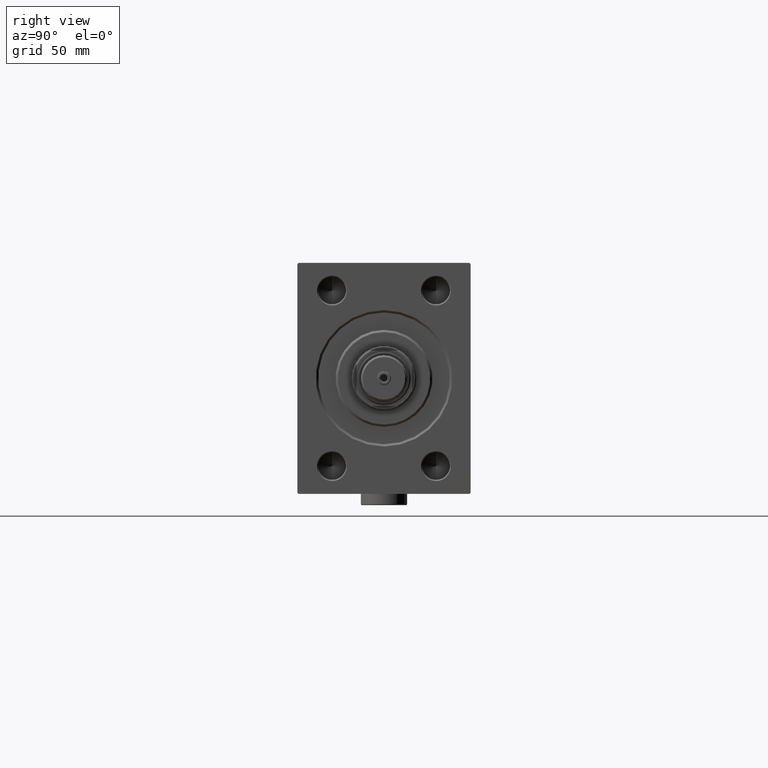
[diagram: clean part render]
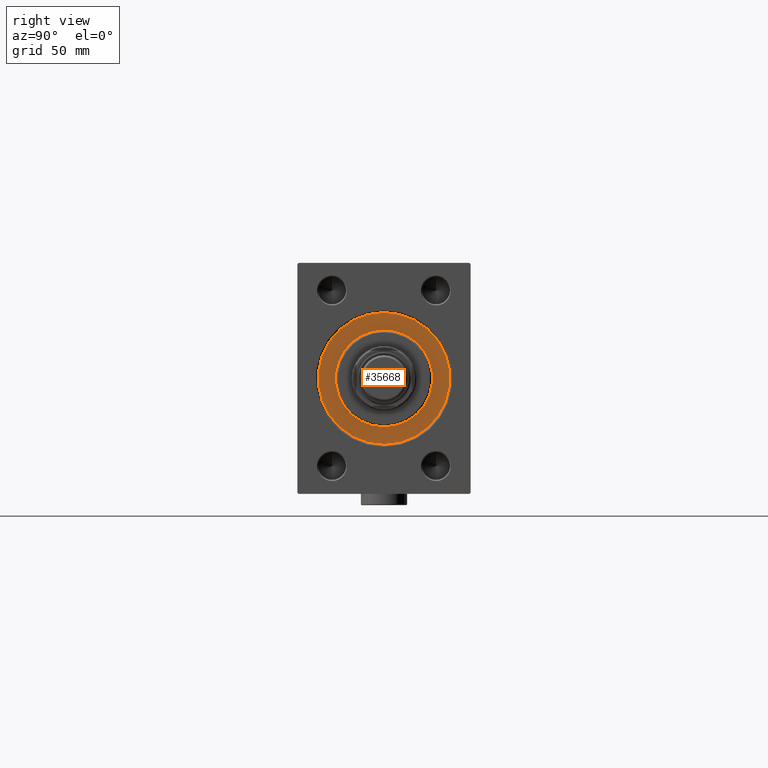
[diagram: same view with one face highlighted and labeled with its STEP entity id]
A machine part, right view. The second image highlights one B-rep face of the part: STEP entity #35668.
In plain terms, the highlighted planar face has unit normal (-1, 0, 0).
Its self-contained STEP definition (entity closure, byte-faithful):
#309 = DIRECTION ( 'NONE',  ( 0.000000000000000000, 0.000000000000000000, 1.000000000000000000 ) ) ;
#314 = DIRECTION ( 'NONE',  ( -1.000000000000000000, 0.000000000000000000, 0.000000000000000000 ) ) ;
#1196 = CARTESIAN_POINT ( 'NONE',  ( 0.000000000000000000, 0.000000000000000000, 0.000000000000000000 ) ) ;
#3201 = AXIS2_PLACEMENT_3D ( 'NONE', #1196, #46809, #5619 ) ;
#3483 = EDGE_CURVE ( 'NONE', #23892, #30699, #10632, .T. ) ;
#3780 = CARTESIAN_POINT ( 'NONE',  ( 0.000000000000000000, 0.000000000000000000, 0.000000000000000000 ) ) ;
#4294 = CARTESIAN_POINT ( 'NONE',  ( 0.000000000000000000, 0.000000000000000000, 0.000000000000000000 ) ) ;
#5592 = CARTESIAN_POINT ( 'NONE',  ( 0.000000000000000000, 0.000000000000000000, -28.50000000000000000 ) ) ;
#5619 = DIRECTION ( 'NONE',  ( 0.000000000000000000, 0.000000000000000000, -1.000000000000000000 ) ) ;
#6937 = VERTEX_POINT ( 'NONE', #5592 ) ;
#7993 = DIRECTION ( 'NONE',  ( 0.000000000000000000, 0.000000000000000000, 1.000000000000000000 ) ) ;
#9040 = AXIS2_PLACEMENT_3D ( 'NONE', #48207, #14398, #47965 ) ;
#10632 = CIRCLE ( 'NONE', #9040, 21.00000000000000000 ) ;
#11577 = ORIENTED_EDGE ( 'NONE', *, *, #20812, .F. ) ;
#12175 = DIRECTION ( 'NONE',  ( -1.000000000000000000, 0.000000000000000000, 0.000000000000000000 ) ) ;
#12403 = AXIS2_PLACEMENT_3D ( 'NONE', #4294, #12175, #7993 ) ;
#13413 = EDGE_CURVE ( 'NONE', #28069, #6937, #47974, .T. ) ;
#13802 = CARTESIAN_POINT ( 'NONE',  ( 0.000000000000000000, 0.000000000000000000, 21.00000000000000000 ) ) ;
#14398 = DIRECTION ( 'NONE',  ( 1.000000000000000000, -0.000000000000000000, 0.000000000000000000 ) ) ;
#15572 = DIRECTION ( 'NONE',  ( -1.000000000000000000, 0.000000000000000000, 0.000000000000000000 ) ) ;
#16304 = CARTESIAN_POINT ( 'NONE',  ( 0.000000000000000000, 0.000000000000000000, 0.000000000000000000 ) ) ;
#16680 = EDGE_CURVE ( 'NONE', #30699, #23892, #37051, .T. ) ;
#18737 = ORIENTED_EDGE ( 'NONE', *, *, #3483, .F. ) ;
#19257 = DIRECTION ( 'NONE',  ( 0.000000000000000000, 0.000000000000000000, 1.000000000000000000 ) ) ;
#20812 = EDGE_CURVE ( 'NONE', #6937, #28069, #22999, .T. ) ;
#21846 = FACE_OUTER_BOUND ( 'NONE', #30678, .T. ) ;
#22732 = ORIENTED_EDGE ( 'NONE', *, *, #13413, .F. ) ;
#22999 = CIRCLE ( 'NONE', #32442, 28.50000000000000000 ) ;
#23892 = VERTEX_POINT ( 'NONE', #13802 ) ;
#26710 = FACE_BOUND ( 'NONE', #47096, .T. ) ;
#27499 = AXIS2_PLACEMENT_3D ( 'NONE', #3780, #15572, #309 ) ;
#28069 = VERTEX_POINT ( 'NONE', #39188 ) ;
#30678 = EDGE_LOOP ( 'NONE', ( #11577, #22732 ) ) ;
#30699 = VERTEX_POINT ( 'NONE', #44475 ) ;
#32442 = AXIS2_PLACEMENT_3D ( 'NONE', #16304, #314, #19257 ) ;
#35668 = ADVANCED_FACE ( 'NONE', ( #26710, #21846 ), #41787, .F. ) ;
#37051 = CIRCLE ( 'NONE', #3201, 21.00000000000000000 ) ;
#39188 = CARTESIAN_POINT ( 'NONE',  ( 0.000000000000000000, 3.490243377569956456E-15, 28.50000000000000000 ) ) ;
#41787 = PLANE ( 'NONE',  #12403 ) ;
#43194 = ORIENTED_EDGE ( 'NONE', *, *, #16680, .F. ) ;
#44475 = CARTESIAN_POINT ( 'NONE',  ( 0.000000000000000000, 2.571758278209441661E-15, -21.00000000000000000 ) ) ;
#46809 = DIRECTION ( 'NONE',  ( 1.000000000000000000, -0.000000000000000000, 0.000000000000000000 ) ) ;
#47096 = EDGE_LOOP ( 'NONE', ( #18737, #43194 ) ) ;
#47965 = DIRECTION ( 'NONE',  ( 0.000000000000000000, 0.000000000000000000, -1.000000000000000000 ) ) ;
#47974 = CIRCLE ( 'NONE', #27499, 28.50000000000000000 ) ;
#48207 = CARTESIAN_POINT ( 'NONE',  ( 0.000000000000000000, 0.000000000000000000, 0.000000000000000000 ) ) ;